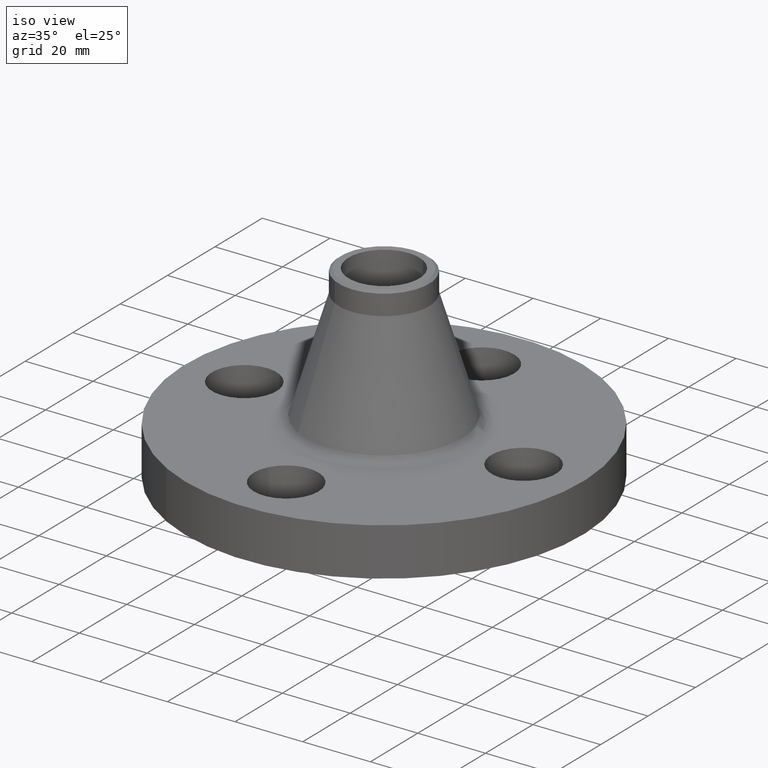
[diagram: clean part render]
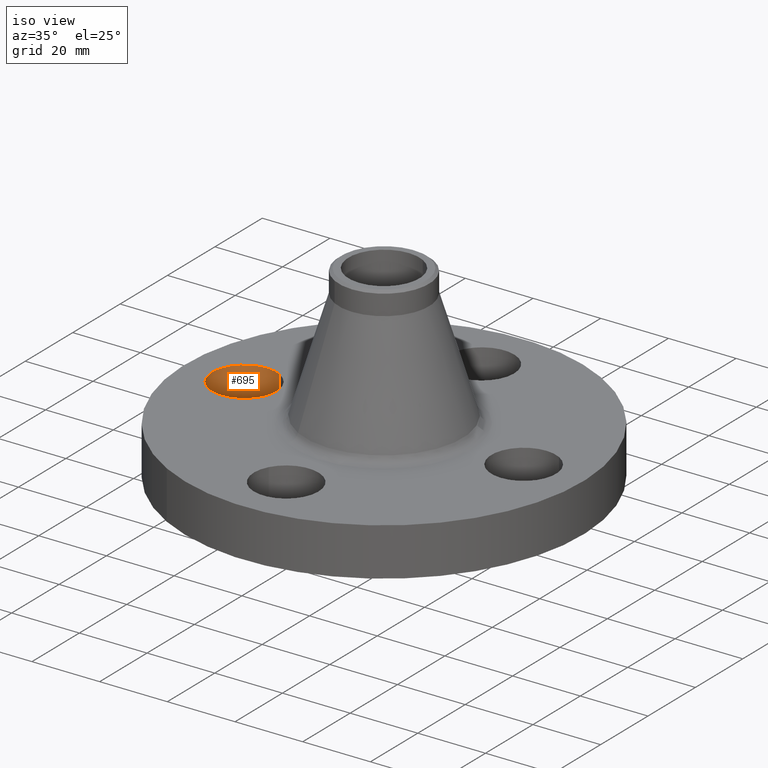
[diagram: same view with one face highlighted and labeled with its STEP entity id]
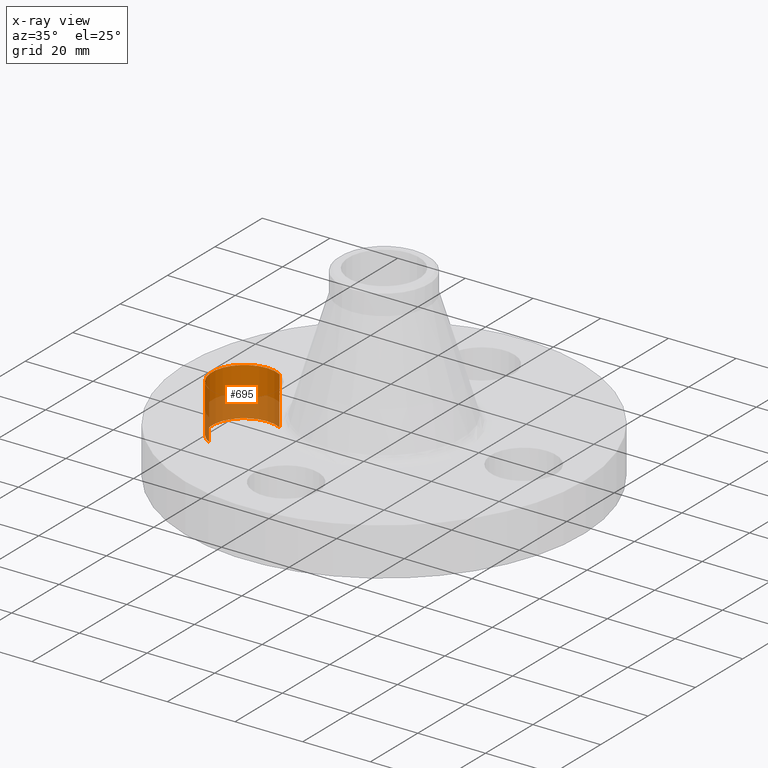
[diagram: x-ray of the same camera — body ghosted, the highlighted face saturated]
A machine part, iso view. The second image highlights one B-rep face of the part: STEP entity #695.
The next image is the same camera in x-ray: the body ghosted, the highlighted face saturated — about 43% of this face is hidden behind the body in this view.
In plain terms, the highlighted cylindrical surface (partial cylindrical patch) has radius 9.525 mm, axis along (0, 0, -1).
Its self-contained STEP definition (entity closure, byte-faithful):
#590=AXIS2_PLACEMENT_3D('Circle Axis2P3D',#588,#589,$) ;
#668=AXIS2_PLACEMENT_3D('Cylinder Axis2P3D',#665,#666,#667) ;
#686=AXIS2_PLACEMENT_3D('Circle Axis2P3D',#684,#685,$) ;
#585=CARTESIAN_POINT('Vertex',(-1.44521542303,0.32909346071,-6.99353086378E-017)) ;
#588=CARTESIAN_POINT('Axis2P3D Location',(-1.62500000001,-2.79741234551E-016,0.)) ;
#592=CARTESIAN_POINT('Vertex',(-1.80478457698,-0.32909346071,0.)) ;
#665=CARTESIAN_POINT('Axis2P3D Location',(-1.62500000001,-2.98507657293E-016,0.556062992128)) ;
#670=CARTESIAN_POINT('Line Origine',(-1.80478457698,-0.32909346071,0.280000000001)) ;
#674=CARTESIAN_POINT('Vertex',(-1.80478457698,-0.32909346071,0.560000000002)) ;
#677=CARTESIAN_POINT('Line Origine',(-1.44521542303,0.32909346071,0.280000000001)) ;
#681=CARTESIAN_POINT('Vertex',(-1.44521542303,0.32909346071,0.560000000002)) ;
#684=CARTESIAN_POINT('Axis2P3D Location',(-1.62500000001,-2.98507657293E-016,0.560000000002)) ;
#589=DIRECTION('Axis2P3D Direction',(0.,0.,-0.0393700787402)) ;
#666=DIRECTION('Axis2P3D Direction',(0.,0.,-0.0393700787402)) ;
#667=DIRECTION('Axis2P3D XDirection',(0.0188750212049,0.0345504945626,0.)) ;
#671=DIRECTION('Vector Direction',(0.,0.,-0.0393700787402)) ;
#678=DIRECTION('Vector Direction',(0.,0.,-0.0393700787402)) ;
#685=DIRECTION('Axis2P3D Direction',(0.,0.,-0.0393700787402)) ;
#672=VECTOR('Line Direction',#671,0.0393700787402) ;
#679=VECTOR('Line Direction',#678,0.0393700787402) ;
#690=ORIENTED_EDGE('',*,*,#676,.F.) ;
#691=ORIENTED_EDGE('',*,*,#594,.T.) ;
#692=ORIENTED_EDGE('',*,*,#683,.T.) ;
#693=ORIENTED_EDGE('',*,*,#688,.F.) ;
#695=ADVANCED_FACE('PartBody',(#694),#669,.F.) ;
#591=CIRCLE('generated circle',#590,0.375000000001) ;
#687=CIRCLE('generated circle',#686,0.375000000001) ;
#669=CYLINDRICAL_SURFACE('generated cylinder',#668,0.375000000001) ;
#594=EDGE_CURVE('',#593,#586,#591,.T.) ;
#676=EDGE_CURVE('',#593,#675,#673,.F.) ;
#683=EDGE_CURVE('',#586,#682,#680,.F.) ;
#688=EDGE_CURVE('',#675,#682,#687,.T.) ;
#689=EDGE_LOOP('',(#690,#691,#692,#693)) ;
#694=FACE_OUTER_BOUND('',#689,.T.) ;
#673=LINE('Line',#670,#672) ;
#680=LINE('Line',#677,#679) ;
#586=VERTEX_POINT('',#585) ;
#593=VERTEX_POINT('',#592) ;
#675=VERTEX_POINT('',#674) ;
#682=VERTEX_POINT('',#681) ;